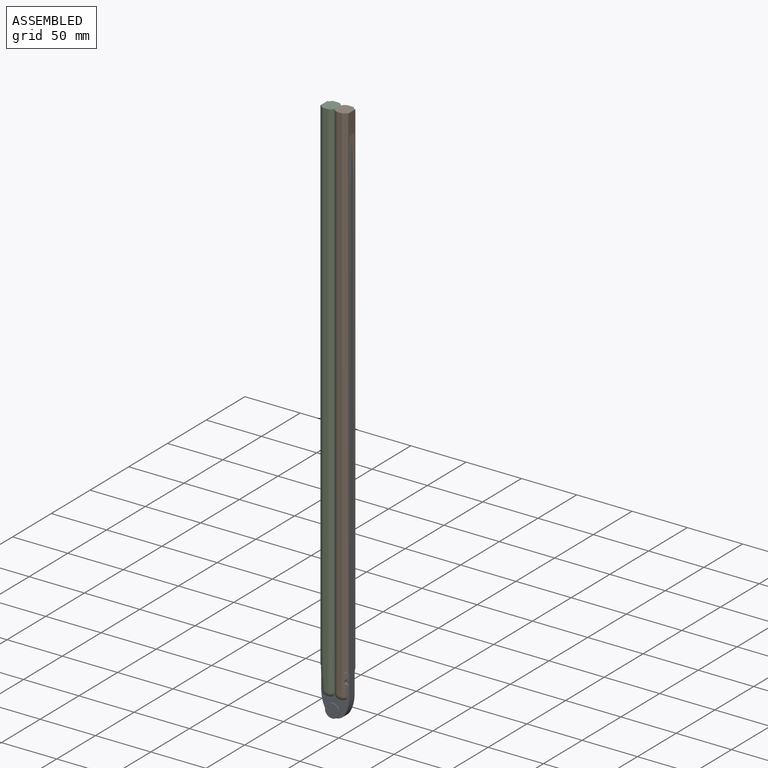
[diagram: assembled view]
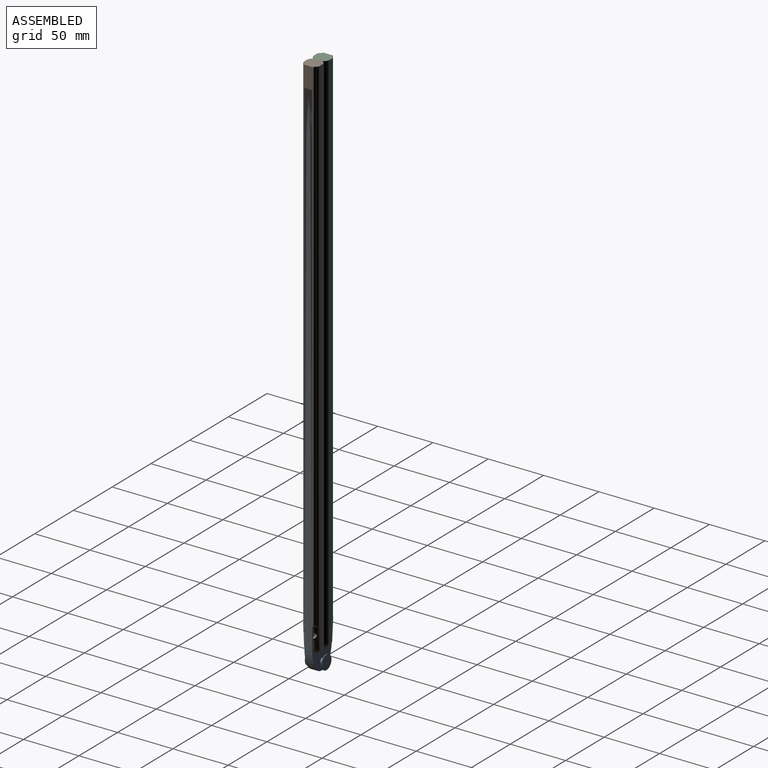
[diagram: assembled view, second angle]
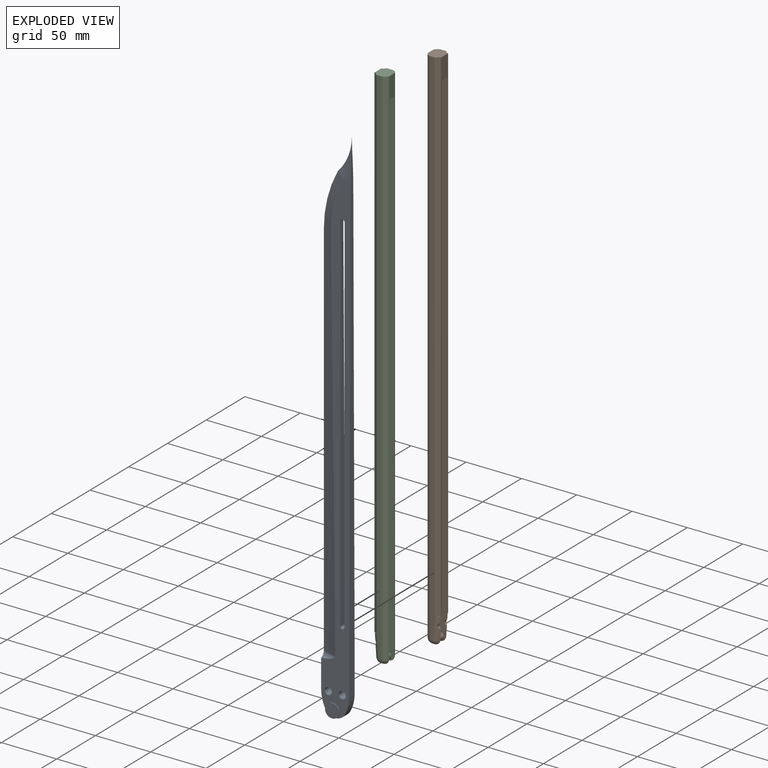
[diagram: exploded view]
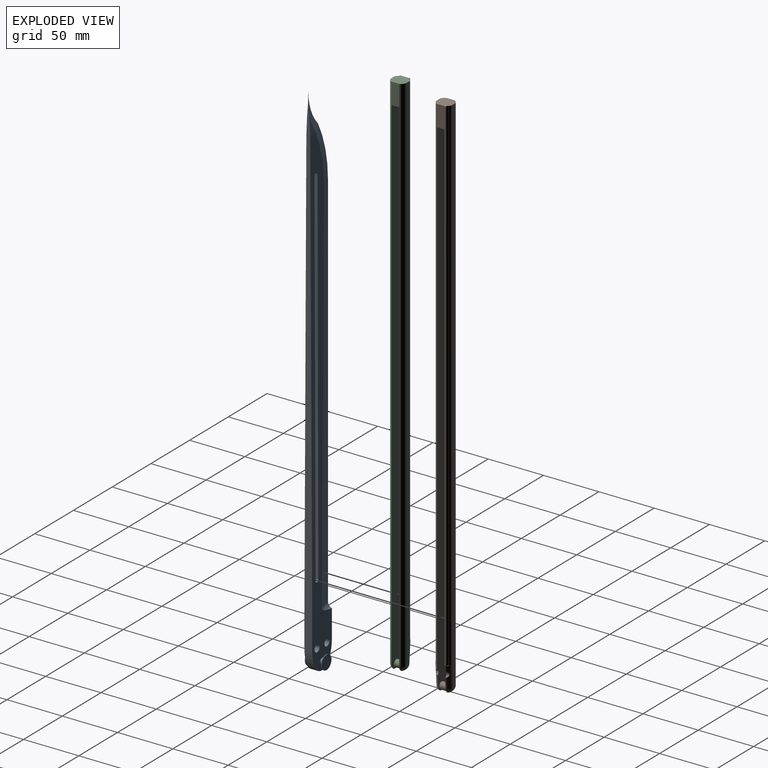
[diagram: exploded view, second angle]
ASSEMBLY  parts=3 mates=2
PART A: 33 faces, bbox 97.5x60.9x477.9 mm
  f0: cylinder r=2.54mm len=5.08mm, axis (0,1,0), area 56.4mm2, adj f13,f30
  f1: cylinder r=2.54mm len=5.08mm, axis (0,1,0), area 56.4mm2, adj f7,f27
  f2: plane 457.2x6.99mm, normal (1,0,0), area 2315.9mm2, adj f3,f7,f10,f13,f15,f18,f19,f20
  f3: torus R=22.47mm, axis (0,-1,0), area 125.8mm2, adj f2,f4,f15,f20
  f4: torus R=131.52mm, axis (0,1,0), area 386.9mm2, adj f3,f6,f14,f20,f21
  f5: cylinder r=113.03mm len=344.17mm, axis (0,0,1), area 3671.5mm2, adj f6,f14,f17,f19
  f6: torus R=131.52mm, axis (0,-1,0), area 386.9mm2, adj f4,f5,f15,f18,f19
  f7: plane 50.8x25.4mm, normal (0,-1,0), area 1056.6mm2, adj f1,f2,f8,f9,f10,f11,f12,f17
  f8: plane 30.82x7.33mm, normal (-1,0,0), area 188.4mm2, adj f7,f9,f13,f16,f17
  f9: cylinder r=31.75mm len=14.94mm, axis (0,1,0), area 108.7mm2, adj f7,f8,f13,f26
  f10: cylinder r=31.75mm len=14.94mm, axis (0,1,0), area 108.7mm2, adj f2,f7,f13,f26
  f11: cylinder r=3.17mm len=6.99mm, axis (0,1,0), area 139.3mm2, adj f7,f13
  f12: cylinder r=3.17mm len=6.99mm, axis (0,1,0), area 139.3mm2, adj f7,f13
  f13: plane 50.8x25.4mm, normal (0,1,0), area 1056.6mm2, adj f0,f2,f8,f9,f10,f11,f12,f16
  f14: cylinder r=113.03mm len=344.17mm, axis (0,0,1), area 3671.5mm2, adj f4,f5,f16,f21
  f15: torus R=22.47mm, axis (0,1,0), area 125.8mm2, adj f2,f3,f6,f18
  f16: torus R=107.95mm, axis (0,0,1), area 55mm2, adj f8,f13,f14
  f17: torus R=107.95mm, axis (0,0,1), area 55mm2, adj f5,f7,f8
  f18: plane 15.45x7.44mm, normal (0,-1,0.04), area 47.9mm2, adj f2,f6,f15,f19
  f19: plane 390.52x17.88mm, normal (0,-1,0), area 4584.8mm2, adj f2,f5,f6,f7,f18,f22,f23,f24
  f20: plane 15.45x7.44mm, normal (0,1,0.04), area 47.9mm2, adj f2,f3,f4,f21
  f21: plane 390.52x17.88mm, normal (0,1,0), area 4584.7mm2, adj f2,f4,f13,f14,f20,f22,f23,f24
  f22: plane 330.23x6.76mm, normal (1,0,0), area 1743.6mm2, adj f19,f21,f23,f25
  f23: cylinder r=1.91mm len=6.77mm, axis (0,-1,0), area 40.4mm2, adj f19,f21,f22,f24
  f24: plane 330.23x6.76mm, normal (-1,0,0), area 1743.5mm2, adj f19,f21,f23,f25
  f25: cylinder r=1.91mm len=3.81mm, axis (0,-1,0), area 22.8mm2, adj f19,f21,f22,f24
  f26: cylinder r=10.16mm len=17.93mm, axis (0,1,0), area 153.4mm2, adj f7,f9,f10,f13
  f27: plane 12.7x12.7mm, normal (0,1,0), area 106.4mm2, adj f1,f28
  f28: cylinder r=6.35mm len=12.7mm, axis (0,-1,0), area 23.6mm2, adj f27,f29
  f29: plane 12.7x12.7mm, normal (0,-1,0), area 126.7mm2, adj f28
  f30: plane 12.7x12.7mm, normal (0,-1,0), area 106.4mm2, adj f0,f31
  f31: cylinder r=6.35mm len=12.7mm, axis (0,1,0), area 23.6mm2, adj f30,f32
  f32: plane 12.7x12.7mm, normal (0,1,0), area 126.7mm2, adj f31
PART B: 31 faces, bbox 12.7x14.1x481.4 mm
  f0: plane 476.49x3.46mm, normal (0,-1,0), area 1628mm2, adj f2,f7,f8,f9,f10,f11,f12,f30
  f1: plane 457.2x8.98mm, normal (-1,0,0), area 1043.4mm2, adj f2,f3,f4,f5,f13,f15,f25,f28
  f2: plane 14.06x12.7mm, normal (0,0,-1), area 158.2mm2, adj f0,f1,f8,f14,f16,f18,f25,f28
  f3: plane 1.04x0.47mm, normal (0,0,1), area 0.2mm2, adj f1,f12,f28
  f4: plane 1.04x0.47mm, normal (0,0,1), area 0.2mm2, adj f1,f22,f25
  f5: plane 462.28x12.7mm, normal (0,1,0), area 5802mm2, adj f1,f6,f8,f9,f10,f11,f12,f13
  f6: cylinder r=3.17mm len=6.99mm, axis (0,-1,0), area 139.3mm2, adj f5,f15
  f7: plane 1.49x0.22mm, normal (0,0,1), area 0mm2, adj f0,f12,f30
  f8: cylinder r=5.08mm len=476.25mm, axis (0,0,-1), area 3052.9mm2, adj f0,f2,f5,f9,f14
  f9: torus R=0.24mm, axis (0,1,0), area 30.6mm2, adj f0,f5,f8,f10
  f10: cylinder r=5.08mm len=4.84mm, axis (-1,0,0), area 8.1mm2, adj f0,f5,f9,f11
  f11: torus R=0.24mm, axis (0,1,0), area 29.3mm2, adj f0,f5,f10,f12
  f12: cylinder r=5.08mm len=19.71mm, axis (0.07,0,1), area 110mm2, adj f0,f3,f5,f7,f11,f24,f27
  f13: plane 12.7x6.99mm, normal (0,0,1), area 88.7mm2, adj f1,f5,f14,f15
  f14: plane 19.05x6.99mm, normal (1,0,0), area 133.1mm2, adj f2,f8,f13,f18
  f15: plane 462.28x12.7mm, normal (0,-1,0), area 5802mm2, adj f1,f6,f13,f18,f19,f20,f21,f22
  f16: plane 476.49x3.46mm, normal (0,1,0), area 1628mm2, adj f2,f17,f18,f19,f20,f21,f22,f29
  f17: plane 1.49x0.22mm, normal (0,0,1), area 0mm2, adj f16,f22,f29
  f18: cylinder r=5.08mm len=476.25mm, axis (0,0,-1), area 3052.9mm2, adj f2,f14,f15,f16,f19
  f19: torus R=0.24mm, axis (0,-1,0), area 30.6mm2, adj f15,f16,f18,f20
  f20: cylinder r=5.08mm len=4.84mm, axis (-1,0,0), area 8.1mm2, adj f15,f16,f19,f21
  f21: torus R=0.24mm, axis (0,-1,0), area 29.3mm2, adj f15,f16,f20,f22
  f22: cylinder r=5.08mm len=19.71mm, axis (0.07,0,1), area 110mm2, adj f4,f15,f16,f17,f21,f23,f26
  f23: cylinder r=2.54mm len=4.97mm, axis (0,-1,0), area 13.8mm2, adj f15,f22
  f24: cylinder r=2.54mm len=4.97mm, axis (0,-1,0), area 13.8mm2, adj f5,f12
  f25: cylinder r=2.54mm len=457.2mm, axis (0,0,-1), area 1216.1mm2, adj f1,f2,f4,f26,f29
  f26: plane 2.92x2.3mm, normal (0,0,-1), area 1.3mm2, adj f22,f25,f29
  f27: plane 2.92x2.3mm, normal (0,0,-1), area 1.3mm2, adj f12,f28,f30
  f28: cylinder r=2.54mm len=457.2mm, axis (0,0,-1), area 1216.1mm2, adj f1,f2,f3,f27,f30
  f29: cylinder r=2.54mm len=457.2mm, axis (0,0,-1), area 1216.1mm2, adj f2,f16,f17,f25,f26
  f30: cylinder r=2.54mm len=457.2mm, axis (0,0,-1), area 1216.1mm2, adj f0,f2,f7,f27,f28
PART C: 31 faces, bbox 12.7x14.1x481.4 mm
  f0: plane 476.49x3.46mm, normal (0,1,0), area 1628mm2, adj f2,f4,f18,f19,f20,f21,f22,f29
  f1: plane 457.2x8.98mm, normal (1,0,0), area 1043.4mm2, adj f2,f5,f8,f14,f16,f17,f26,f27
  f2: plane 14.06x12.7mm, normal (0,0,-1), area 158.2mm2, adj f0,f1,f6,f9,f15,f18,f26,f27
  f3: plane 1.49x0.22mm, normal (0,0,1), area 0mm2, adj f6,f13,f30
  f4: plane 1.49x0.22mm, normal (0,0,1), area 0mm2, adj f0,f22,f29
  f5: plane 462.28x12.7mm, normal (0,1,0), area 5802mm2, adj f1,f7,f9,f10,f11,f12,f13,f14
  f6: plane 476.49x3.46mm, normal (0,-1,0), area 1628mm2, adj f2,f3,f9,f10,f11,f12,f13,f30
  f7: cylinder r=3.17mm len=6.99mm, axis (0,-1,0), area 139.3mm2, adj f5,f16
  f8: plane 1.04x0.47mm, normal (0,0,1), area 0.2mm2, adj f1,f13,f27
  f9: cylinder r=5.08mm len=476.25mm, axis (0,0,-1), area 3052.9mm2, adj f2,f5,f6,f10,f15
  f10: torus R=0.24mm, axis (0,1,0), area 30.6mm2, adj f5,f6,f9,f11
  f11: cylinder r=5.08mm len=4.84mm, axis (1,0,0), area 8.1mm2, adj f5,f6,f10,f12
  f12: torus R=0.24mm, axis (0,1,0), area 29.3mm2, adj f5,f6,f11,f13
  f13: cylinder r=5.08mm len=19.71mm, axis (-0.07,0,1), area 110mm2, adj f3,f5,f6,f8,f12,f24,f28
  f14: plane 12.7x6.99mm, normal (0,0,1), area 88.7mm2, adj f1,f5,f15,f16
  f15: plane 19.05x6.99mm, normal (-1,0,0), area 133.1mm2, adj f2,f9,f14,f18
  f16: plane 462.28x12.7mm, normal (0,-1,0), area 5802mm2, adj f1,f7,f14,f18,f19,f20,f21,f22
  f17: plane 1.04x0.47mm, normal (0,0,1), area 0.2mm2, adj f1,f22,f26
  f18: cylinder r=5.08mm len=476.25mm, axis (0,0,-1), area 3052.9mm2, adj f0,f2,f15,f16,f19
  f19: torus R=0.24mm, axis (0,-1,0), area 30.6mm2, adj f0,f16,f18,f20
  f20: cylinder r=5.08mm len=4.84mm, axis (1,0,0), area 8.1mm2, adj f0,f16,f19,f21
  f21: torus R=0.24mm, axis (0,-1,0), area 29.3mm2, adj f0,f16,f20,f22
  f22: cylinder r=5.08mm len=19.71mm, axis (-0.07,0,1), area 110mm2, adj f0,f4,f16,f17,f21,f23,f25
  f23: cylinder r=2.54mm len=4.97mm, axis (0,-1,0), area 13.8mm2, adj f16,f22
  f24: cylinder r=2.54mm len=4.97mm, axis (0,-1,0), area 13.8mm2, adj f5,f13
  f25: plane 2.92x2.3mm, normal (0,0,-1), area 1.3mm2, adj f22,f26,f29
  f26: cylinder r=2.54mm len=457.2mm, axis (0,0,-1), area 1216.1mm2, adj f1,f2,f17,f25,f29
  f27: cylinder r=2.54mm len=457.2mm, axis (0,0,-1), area 1216.1mm2, adj f1,f2,f8,f28,f30
  f28: plane 2.92x2.3mm, normal (0,0,-1), area 1.3mm2, adj f13,f27,f30
  f29: cylinder r=2.54mm len=457.2mm, axis (0,0,-1), area 1216.1mm2, adj f0,f2,f4,f25,f26
  f30: cylinder r=2.54mm len=457.2mm, axis (0,0,-1), area 1216.1mm2, adj f2,f3,f6,f27,f28
PLACE A t=(-12.92,17.29,1017.25)mm
PLACE B rot(axis=(0,-1,0),180deg) t=(-0.22,17.29,966.45)mm
PLACE C rot(axis=(0,-1,0),180deg) t=(-25.62,17.29,966.45)mm
MATE revolute C.f7 <-> A.f12  axis (0,-1,0) through (-19.27,17.29,991.85)mm
MATE revolute A.f11 <-> B.f6  axis (0,1,0) through (-6.57,17.29,991.85)mm
